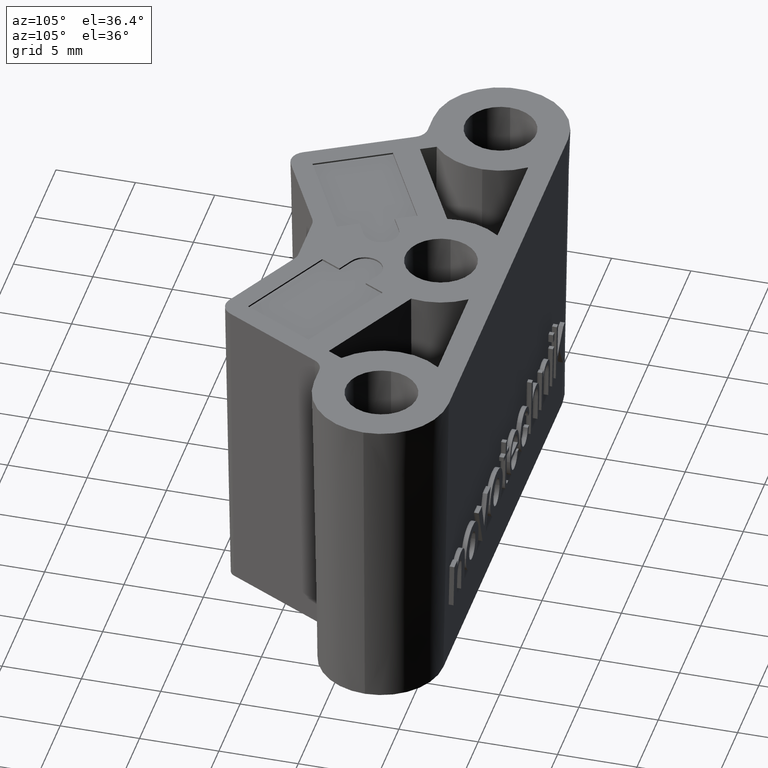
[diagram: clean part render]
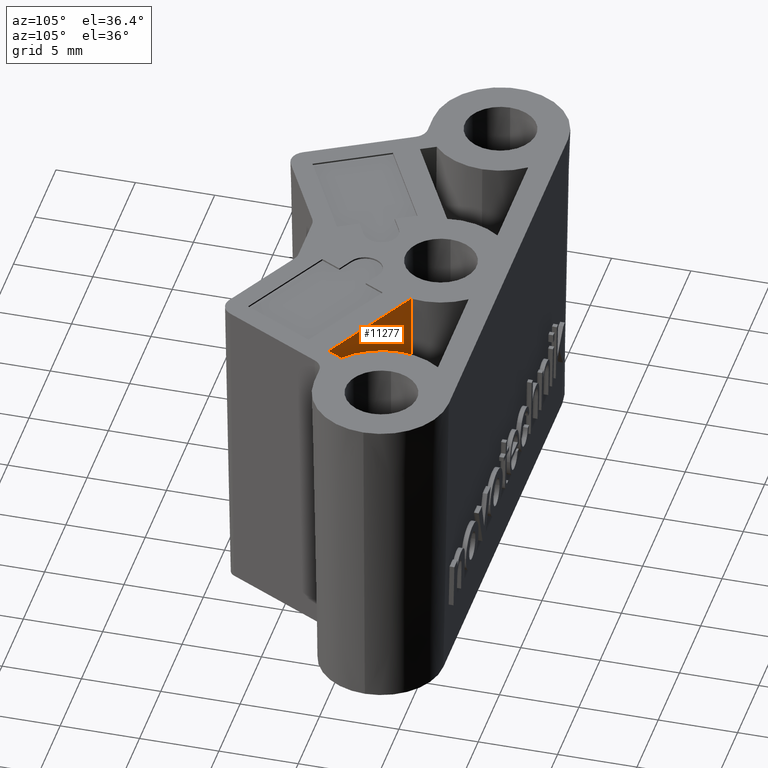
[diagram: same view with one face highlighted and labeled with its STEP entity id]
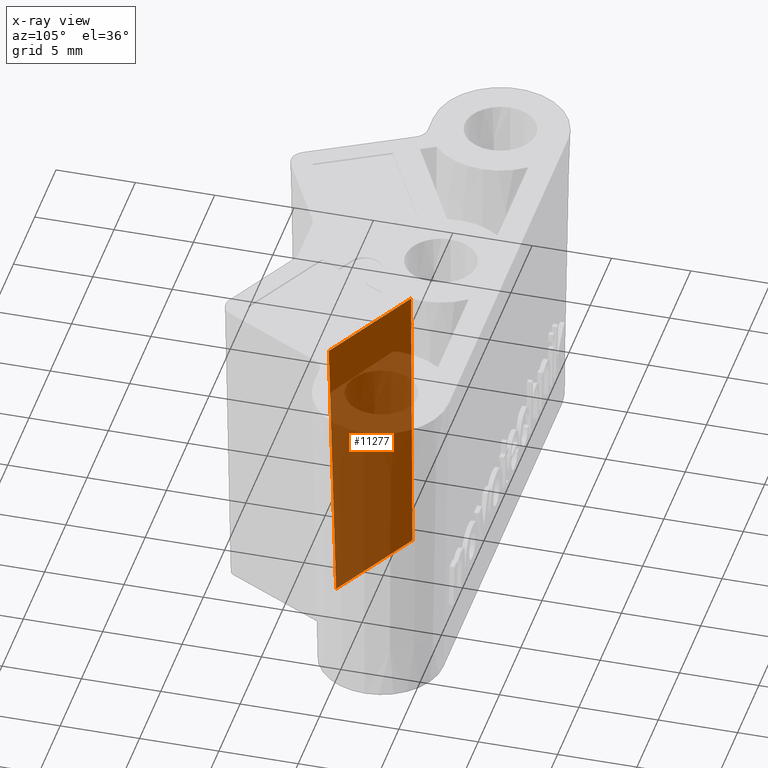
[diagram: x-ray of the same camera — body ghosted, the highlighted face saturated]
A machine part, auxiliary view. The second image highlights one B-rep face of the part: STEP entity #11277.
The next image is the same camera in x-ray: the body ghosted, the highlighted face saturated — about 81% of this face is hidden behind the body in this view.
In plain terms, the highlighted planar face has unit normal (0.4694, 0.8828, 0.0175).
Its self-contained STEP definition (entity closure, byte-faithful):
#2187 = CARTESIAN_POINT ( 'NONE',  ( 4.233983953227440400, 31.54941364000366000, 20.00000000000001800 ) ) ;
#2188 = CARTESIAN_POINT ( 'NONE',  ( 10.71949285449885100, 28.10100738807316700, 20.00000000000001800 ) ) ;
#2191 = DIRECTION ( 'NONE',  ( 0.8829475928589266600, -0.4694715627858911400, 3.944304526105058600E-031 ) ) ;
#2192 = VECTOR ( 'NONE', #2191, 1000.000000000000100 ) ;
#2193 = CARTESIAN_POINT ( 'NONE',  ( 10.71949285449885100, 28.10100738807316700, 20.00000000000001800 ) ) ;
#2194 = LINE ( 'NONE', #2193, #2192 ) ;
#4941 = FACE_OUTER_BOUND ( 'NONE', #11219, .T. ) ;
#4942 = DIRECTION ( 'NONE',  ( 0.007215053008729359200, -0.02359937502610438800, 0.9996954598818874600 ) ) ;
#4943 = VECTOR ( 'NONE', #4942, 1000.000000000000200 ) ;
#4944 = CARTESIAN_POINT ( 'NONE',  ( 10.71949285449885100, 28.10100738807316700, 20.00000000000001800 ) ) ;
#4945 = LINE ( 'NONE', #4944, #4943 ) ;
#5023 = CARTESIAN_POINT ( 'NONE',  ( 10.58958233737749500, 28.52592554316818500, 2.000000000000001800 ) ) ;
#5027 = DIRECTION ( 'NONE',  ( -0.8829475928589266600, 0.4694715627858911400, -3.944304526105058200E-031 ) ) ;
#5028 = DIRECTION ( 'NONE',  ( 0.4694000599929423200, 0.8828131156638816500, 0.01745240643728355000 ) ) ;
#5029 = CARTESIAN_POINT ( 'NONE',  ( 10.71949285449885100, 28.10100738807316700, 20.00000000000001800 ) ) ;
#5030 = AXIS2_PLACEMENT_3D ( 'NONE', #5029, #5028, #5027 ) ;
#5032 = PLANE ( 'NONE',  #5030 ) ;
#6081 = CARTESIAN_POINT ( 'NONE',  ( 4.233983953227440400, 31.54941364000366000, 20.00000000000001800 ) ) ;
#6082 = CARTESIAN_POINT ( 'NONE',  ( 4.291752547153914000, 31.57755634778316900, 17.02268376687378300 ) ) ;
#6083 = CARTESIAN_POINT ( 'NONE',  ( 4.349059218644382200, 31.60594479611279100, 14.04536085492478400 ) ) ;
#6084 = CARTESIAN_POINT ( 'NONE',  ( 4.405939884108255100, 31.63455987279214900, 11.06803202831435600 ) ) ;
#6085 = CARTESIAN_POINT ( 'NONE',  ( 4.463686800965464700, 31.66361073639210100, 8.045360637170956500 ) ) ;
#6086 = CARTESIAN_POINT ( 'NONE',  ( 4.520994593597211300, 31.69289520863810600, 5.022683067001021400 ) ) ;
#6087 = CARTESIAN_POINT ( 'NONE',  ( 4.577896186524677400, 31.72239576976532000, 2.000000000000001800 ) ) ;
#6093 = B_SPLINE_CURVE_WITH_KNOTS ( 'NONE', 3,
 ( #6087, #6086, #6085, #6084, #6083, #6082, #6081 ),
 .UNSPECIFIED., .F., .F.,
 ( 4, 3, 4 ),
 ( 0.0000000000000000000, 0.009070087595016531800, 0.01800411640243091600 ),
 .UNSPECIFIED. ) ;
#6096 = CARTESIAN_POINT ( 'NONE',  ( 4.577896186524677400, 31.72239576976532000, 2.000000000000001800 ) ) ;
#6097 = DIRECTION ( 'NONE',  ( 0.8829475928589266600, -0.4694715627858911400, 3.944304526105058200E-031 ) ) ;
#6098 = VECTOR ( 'NONE', #6097, 1000.000000000000200 ) ;
#6099 = CARTESIAN_POINT ( 'NONE',  ( 10.86699667348568200, 28.37842172418134000, 2.000000000000001800 ) ) ;
#6100 = LINE ( 'NONE', #6099, #6098 ) ;
#11215 = ORIENTED_EDGE ( 'NONE', *, *, #13476, .T. ) ;
#11216 = ORIENTED_EDGE ( 'NONE', *, *, #11276, .F. ) ;
#11219 = EDGE_LOOP ( 'NONE', ( #11215, #11216, #11322, #11325 ) ) ;
#11276 = EDGE_CURVE ( 'NONE', #11280, #13482, #4945, .T. ) ;
#11277 = ADVANCED_FACE ( 'NONE', ( #4941 ), #5032, .T. ) ;
#11280 = VERTEX_POINT ( 'NONE', #5023 ) ;
#11322 = ORIENTED_EDGE ( 'NONE', *, *, #11323, .F. ) ;
#11323 = EDGE_CURVE ( 'NONE', #11324, #11280, #6100, .T. ) ;
#11324 = VERTEX_POINT ( 'NONE', #6096 ) ;
#11325 = ORIENTED_EDGE ( 'NONE', *, *, #11326, .T. ) ;
#11326 = EDGE_CURVE ( 'NONE', #11324, #13483, #6093, .T. ) ;
#13476 = EDGE_CURVE ( 'NONE', #13483, #13482, #2194, .T. ) ;
#13482 = VERTEX_POINT ( 'NONE', #2188 ) ;
#13483 = VERTEX_POINT ( 'NONE', #2187 ) ;